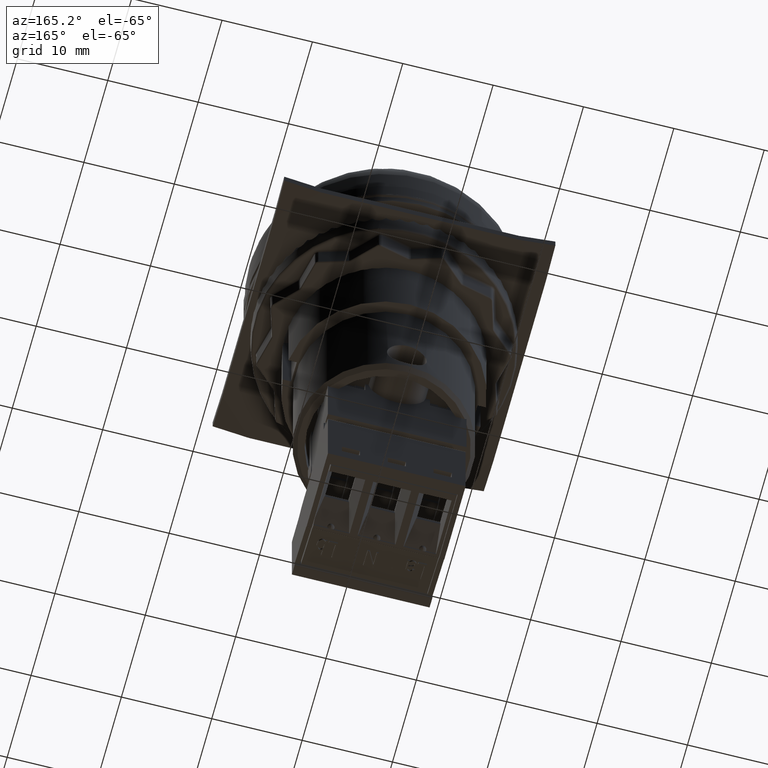
[diagram: clean part render]
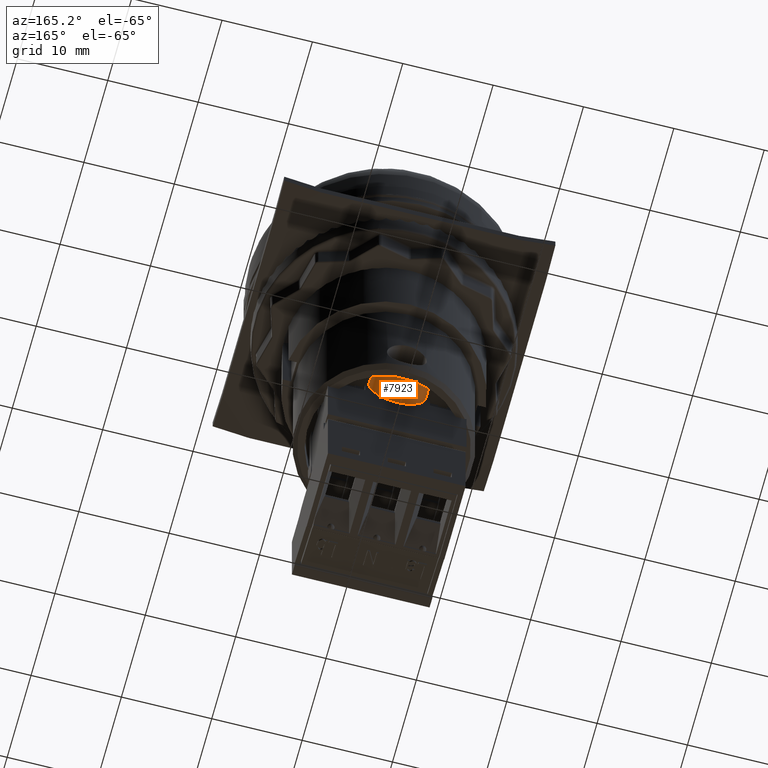
[diagram: same view with one face highlighted and labeled with its STEP entity id]
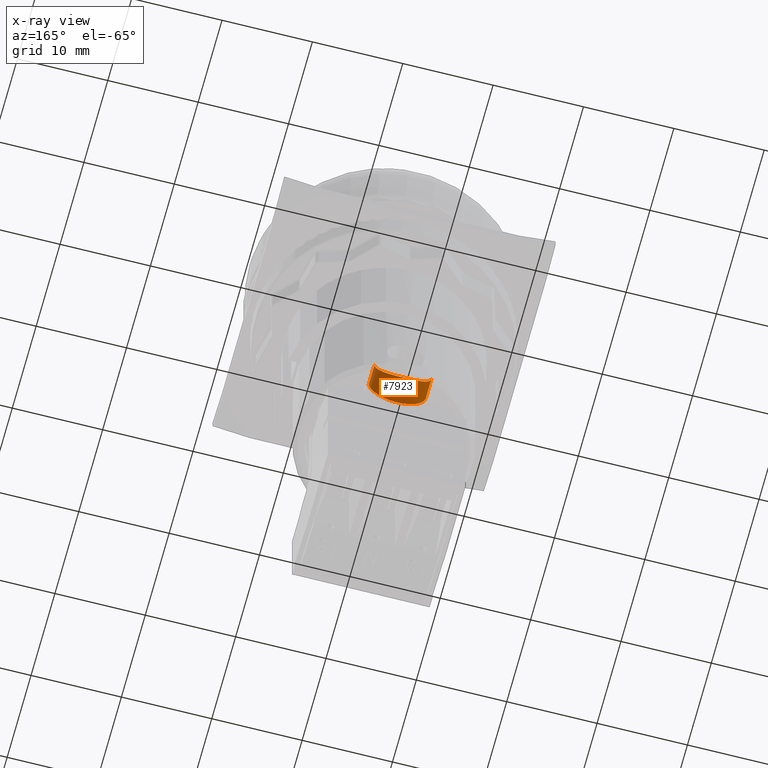
[diagram: x-ray of the same camera — body ghosted, the highlighted face saturated]
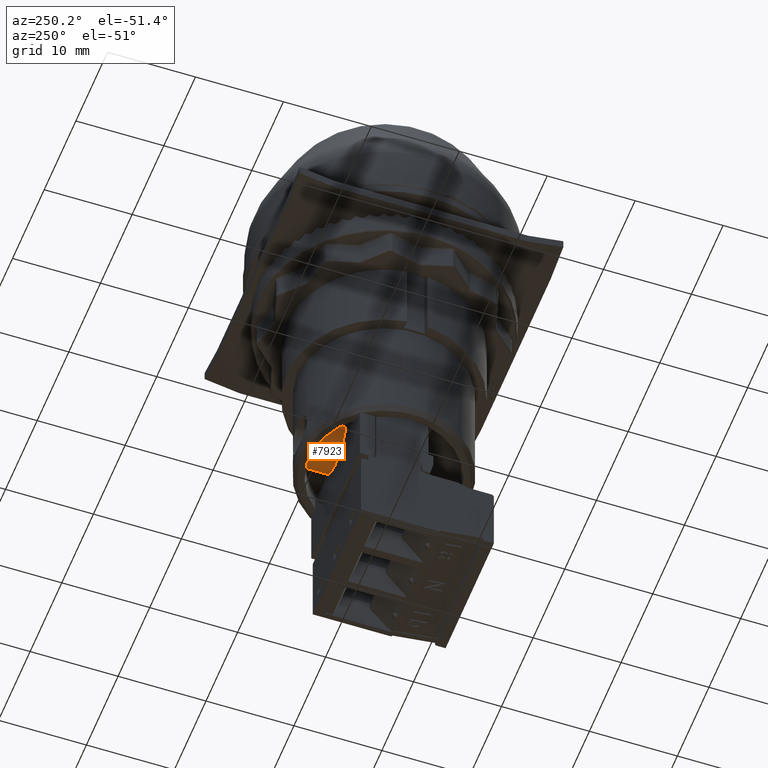
[diagram: same view with one face highlighted and labeled with its STEP entity id]
A machine part, auxiliary view. The second image highlights one B-rep face of the part: STEP entity #7923.
The next image is the same camera in x-ray: the body ghosted, the highlighted face saturated — about 0% of this face is hidden behind the body in this view.
A second angle (auxiliary view) of the same face is appended — the face is thin or edge-on in the first view.
In plain terms, the highlighted cylindrical surface (edge-blend (fillet) strip) has radius 3.2 mm, axis along (0, 1, 0).
Its self-contained STEP definition (entity closure, byte-faithful):
#689=CYLINDRICAL_SURFACE('',#28135,3.2);
#961=B_SPLINE_CURVE_WITH_KNOTS('',3,(#37729,#37730,#37731,#37732,#37733,
#37734,#37735,#37736,#37737,#37738,#37739,#37740,#37741,#37742,#37743,#37744,
#37745,#37746,#37747,#37748,#37749,#37750,#37751,#37752,#37753,#37754,#37755,
#37756),.UNSPECIFIED.,.F.,.F.,(4,3,3,3,3,3,3,3,3,4),(0.,0.116833958602164,
0.233289052844854,0.354948211694669,0.475461312143129,0.58866070563075,0.699591062346451,
0.815704017944786,0.937842703435995,1.),.UNSPECIFIED.);
#1644=FACE_OUTER_BOUND('',#10351,.T.);
#3127=LINE('',#37830,#5526);
#3128=LINE('',#37831,#5527);
#5526=VECTOR('',#30587,1.);
#5527=VECTOR('',#30588,1.);
#7923=ADVANCED_FACE('',(#1644),#689,.T.);
#10351=EDGE_LOOP('',(#12030,#12031,#12032,#12033));
#12030=ORIENTED_EDGE('',*,*,#22987,.F.);
#12031=ORIENTED_EDGE('',*,*,#22952,.F.);
#12032=ORIENTED_EDGE('',*,*,#22988,.F.);
#12033=ORIENTED_EDGE('',*,*,#22926,.F.);
#20241=VERTEX_POINT('',#37612);
#20242=VERTEX_POINT('',#37613);
#20261=VERTEX_POINT('',#37728);
#20262=VERTEX_POINT('',#37757);
#22926=EDGE_CURVE('',#20241,#20242,#27077,.T.);
#22952=EDGE_CURVE('',#20261,#20262,#961,.T.);
#22987=EDGE_CURVE('',#20262,#20241,#3127,.T.);
#22988=EDGE_CURVE('',#20242,#20261,#3128,.T.);
#27077=CIRCLE('',#28091,3.2);
#28091=AXIS2_PLACEMENT_3D('',#37611,#30465,#30466);
#28135=AXIS2_PLACEMENT_3D('',#37832,#30589,#30590);
#30465=DIRECTION('',(0.,-1.,0.));
#30466=DIRECTION('',(1.,0.,0.));
#30587=DIRECTION('',(0.,-1.,0.));
#30588=DIRECTION('',(0.,1.,0.));
#30589=DIRECTION('',(1.13869E-016,1.,0.));
#30590=DIRECTION('',(-1.,0.,0.));
#37611=CARTESIAN_POINT('',(-1.77184302810665,-6.9,3.3));
#37612=CARTESIAN_POINT('',(-4.93253915396257,-6.9,2.80000000000063));
#37613=CARTESIAN_POINT('',(1.38885309774927,-6.9,2.80000000000063));
#37728=CARTESIAN_POINT('',(1.38885309774927,-4.50949938216847,2.80000000000063));
#37729=CARTESIAN_POINT('',(1.38885309774927,-4.50949938216847,2.80000000000063));
#37730=CARTESIAN_POINT('',(1.33363249014493,-4.48737967532401,2.45092887895526));
#37731=CARTESIAN_POINT('',(1.21838344351257,-4.44143753321026,2.1081111929901));
#37732=CARTESIAN_POINT('',(1.05456975442793,-4.38367972304466,1.79953647737603));
#37733=CARTESIAN_POINT('',(0.891081373051303,-4.32603661062472,1.49157454164653));
#37734=CARTESIAN_POINT('',(0.675121016585406,-4.25563604328526,1.20889828286983));
#37735=CARTESIAN_POINT('',(0.422643315119895,-4.1881652665563,0.971002428212474));
#37736=CARTESIAN_POINT('',(0.159257765895792,-4.11777953553062,0.722828708421131));
#37737=CARTESIAN_POINT('',(-0.151604123309059,-4.04899904673003,0.516454754443459));
#37738=CARTESIAN_POINT('',(-0.485928784302441,-3.99783215130871,0.369739848139511));
#37739=CARTESIAN_POINT('',(-0.816769540183426,-3.94719845199686,0.224553817422002));
#37740=CARTESIAN_POINT('',(-1.18066255739889,-3.91277829177195,0.134007386860959));
#37741=CARTESIAN_POINT('',(-1.5444370592368,-3.90304251362157,0.108090457841519));
#37742=CARTESIAN_POINT('',(-1.8866737098637,-3.89388315778822,0.0837079820568343));
#37743=CARTESIAN_POINT('',(-2.23831889747284,-3.90629949542358,0.11578401218423));
#37744=CARTESIAN_POINT('',(-2.56933984537198,-3.93749453019664,0.200968082376099));
#37745=CARTESIAN_POINT('',(-2.89419527824899,-3.96810853389982,0.28456553496039));
#37746=CARTESIAN_POINT('',(-3.20779364200333,-4.01728961416524,0.421081960004819));
#37747=CARTESIAN_POINT('',(-3.48789009203599,-4.07502657815776,0.599040453027944));
#37748=CARTESIAN_POINT('',(-3.78098114532791,-4.13544215139502,0.785255030743262));
#37749=CARTESIAN_POINT('',(-4.04525399808259,-4.20651128701968,1.02153657523074));
#37750=CARTESIAN_POINT('',(-4.26255440902974,-4.27310903131214,1.29093135584167));
#37751=CARTESIAN_POINT('',(-4.49071203766953,-4.34303427141774,1.57378620201624));
#37752=CARTESIAN_POINT('',(-4.67344496329429,-4.40954469720899,1.90158981081128));
#37753=CARTESIAN_POINT('',(-4.79411922311068,-4.45545176859552,2.24840758793535));
#37754=CARTESIAN_POINT('',(-4.85621196160624,-4.47907317537305,2.42686209491424));
#37755=CARTESIAN_POINT('',(-4.90284425278013,-4.4976045020245,2.61228688175038));
#37756=CARTESIAN_POINT('',(-4.93253915396257,-4.50949938216847,2.80000000000063));
#37757=CARTESIAN_POINT('',(-4.93253915396257,-4.50949938216847,2.80000000000063));
#37830=CARTESIAN_POINT('',(-4.93253915396257,-4.50949938216847,2.80000000000063));
#37831=CARTESIAN_POINT('',(1.38885309774927,-6.9,2.80000000000063));
#37832=CARTESIAN_POINT('',(-1.77184302810665,-6.9,3.3));